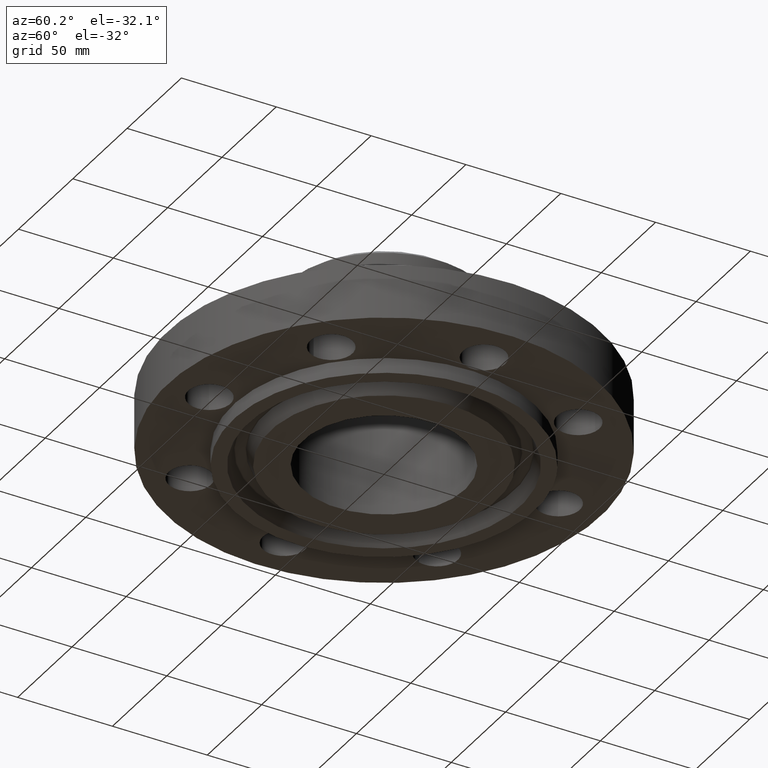
[diagram: clean part render]
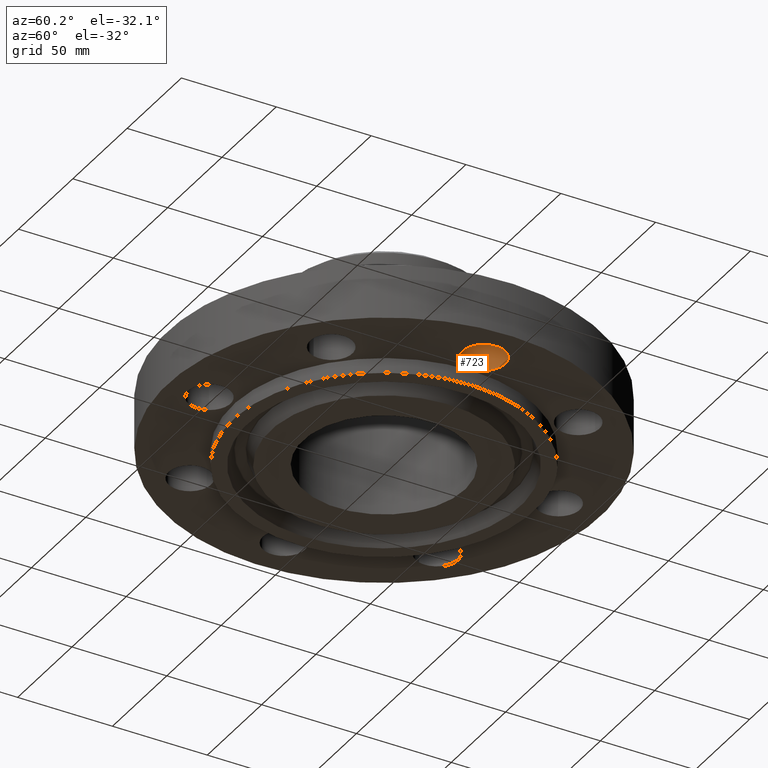
[diagram: same view with one face highlighted and labeled with its STEP entity id]
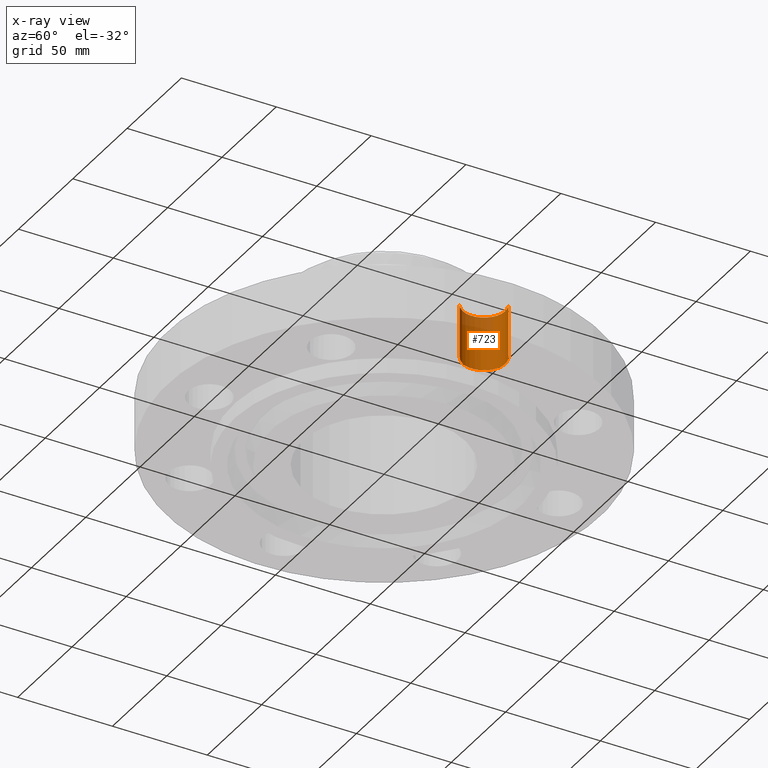
[diagram: x-ray of the same camera — body ghosted, the highlighted face saturated]
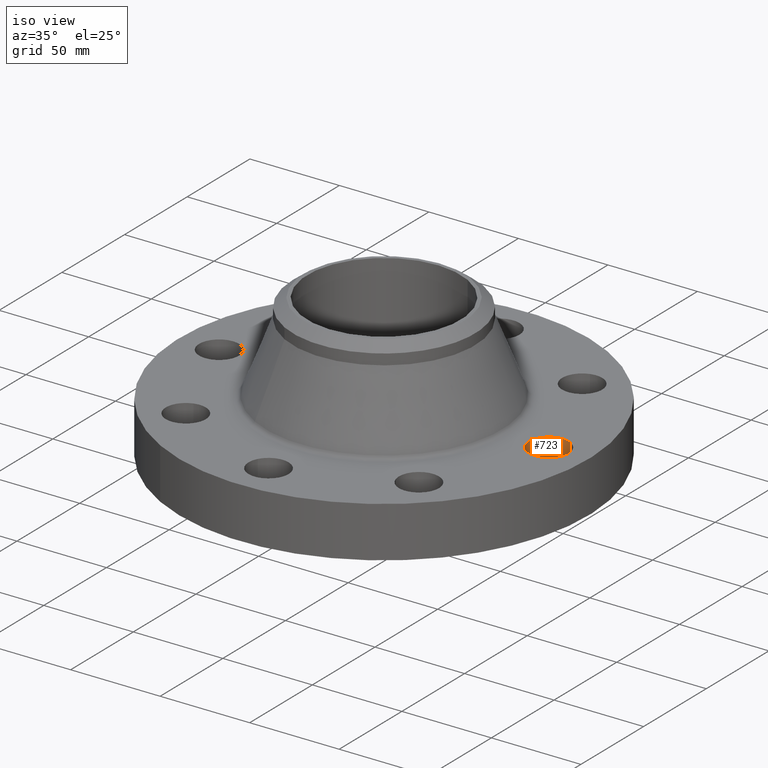
[diagram: same view with one face highlighted and labeled with its STEP entity id]
A machine part, auxiliary view. The second image highlights one B-rep face of the part: STEP entity #723.
The next image is the same camera in x-ray: the body ghosted, the highlighted face saturated — about 17% of this face is hidden behind the body in this view.
A second angle (iso view) of the same face is appended — the face is thin or edge-on in the first view.
In plain terms, the highlighted cylindrical surface (edge-blend (fillet) strip) has radius 11.176 mm, axis along (0, -0, -1).
Its self-contained STEP definition (entity closure, byte-faithful):
#210=AXIS2_PLACEMENT_3D('Circle Axis2P3D',#208,#209,$) ;
#381=AXIS2_PLACEMENT_3D('Circle Axis2P3D',#379,#380,$) ;
#715=AXIS2_PLACEMENT_3D('Cylinder Axis2P3D',#712,#713,#714) ;
#203=CARTESIAN_POINT('Vertex',(3.83594723697,0.386136327257,0.)) ;
#205=CARTESIAN_POINT('Vertex',(3.41405276304,-0.386136327237,0.)) ;
#208=CARTESIAN_POINT('Axis2P3D Location',(3.62500000002,3.00106396427E-012,0.)) ;
#379=CARTESIAN_POINT('Axis2P3D Location',(3.62500000002,-1.63318527556E-011,1.12)) ;
#383=CARTESIAN_POINT('Vertex',(3.41405276303,-0.386136327236,1.11999999999)) ;
#385=CARTESIAN_POINT('Vertex',(3.835947237,0.386136327233,1.11999999999)) ;
#688=CARTESIAN_POINT('Line Origine',(3.835947237,0.386136327233,0.56000000001)) ;
#693=CARTESIAN_POINT('Line Origine',(3.41405276302,-0.386136327233,0.56000000001)) ;
#712=CARTESIAN_POINT('Axis2P3D Location',(3.62500000001,2.21967232346E-016,1.11606299213)) ;
#209=DIRECTION('Axis2P3D Direction',(0.,0.,-0.0393700787402)) ;
#380=DIRECTION('Axis2P3D Direction',(0.,0.,-0.0393700787402)) ;
#689=DIRECTION('Vector Direction',(0.,0.,-0.0393700787402)) ;
#694=DIRECTION('Vector Direction',(0.,0.,-0.0393700787402)) ;
#713=DIRECTION('Axis2P3D Direction',(0.,-0.,-0.0393700787402)) ;
#714=DIRECTION('Axis2P3D XDirection',(-0.0188750212049,-0.0345504945626,0.)) ;
#690=VECTOR('Line Direction',#689,0.0393700787402) ;
#695=VECTOR('Line Direction',#694,0.0393700787402) ;
#718=ORIENTED_EDGE('',*,*,#697,.F.) ;
#719=ORIENTED_EDGE('',*,*,#212,.T.) ;
#720=ORIENTED_EDGE('',*,*,#692,.T.) ;
#721=ORIENTED_EDGE('',*,*,#387,.F.) ;
#723=ADVANCED_FACE('PartBody',(#722),#716,.F.) ;
#211=CIRCLE('generated circle',#210,0.440000000002) ;
#382=CIRCLE('generated circle',#381,0.440000000002) ;
#716=CYLINDRICAL_SURFACE('generated cylinder',#715,0.440000000002) ;
#212=EDGE_CURVE('',#206,#204,#211,.T.) ;
#387=EDGE_CURVE('',#384,#386,#382,.T.) ;
#692=EDGE_CURVE('',#204,#386,#691,.F.) ;
#697=EDGE_CURVE('',#206,#384,#696,.F.) ;
#717=EDGE_LOOP('',(#718,#719,#720,#721)) ;
#722=FACE_OUTER_BOUND('',#717,.T.) ;
#691=LINE('Line',#688,#690) ;
#696=LINE('Line',#693,#695) ;
#204=VERTEX_POINT('',#203) ;
#206=VERTEX_POINT('',#205) ;
#384=VERTEX_POINT('',#383) ;
#386=VERTEX_POINT('',#385) ;